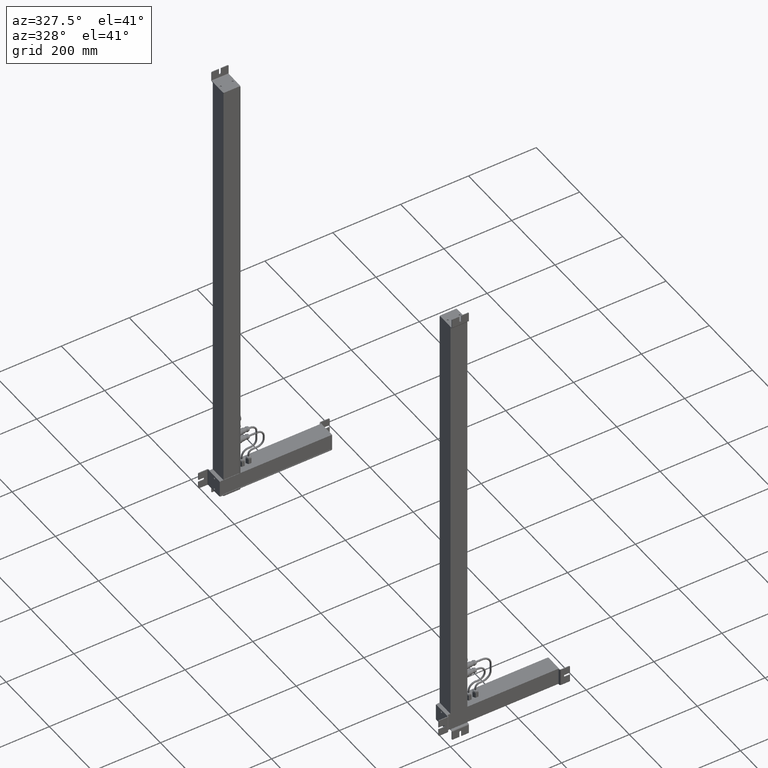
[diagram: clean part render]
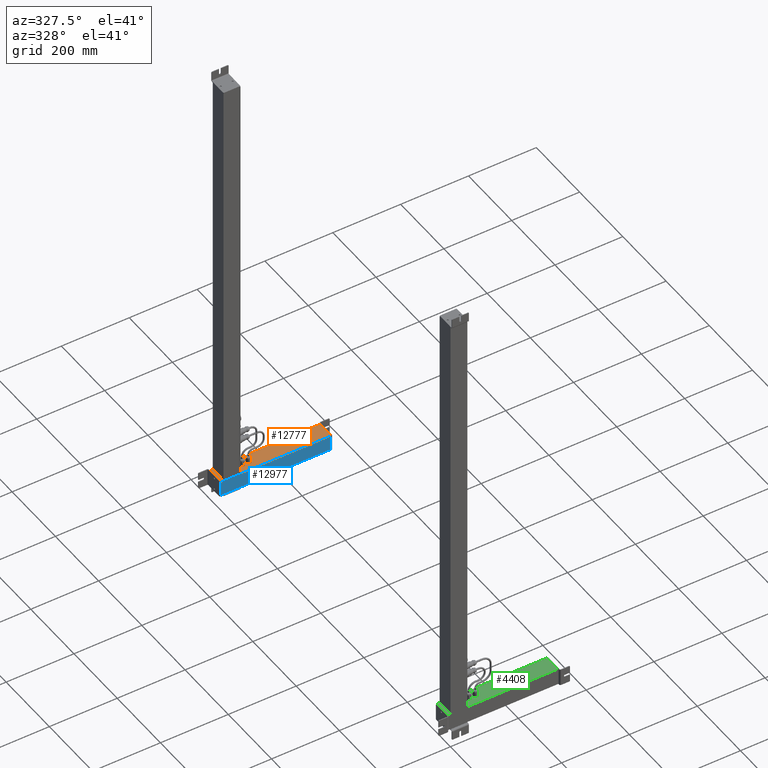
[diagram: same view with three faces highlighted in distinct colors, each labeled with its STEP entity id]
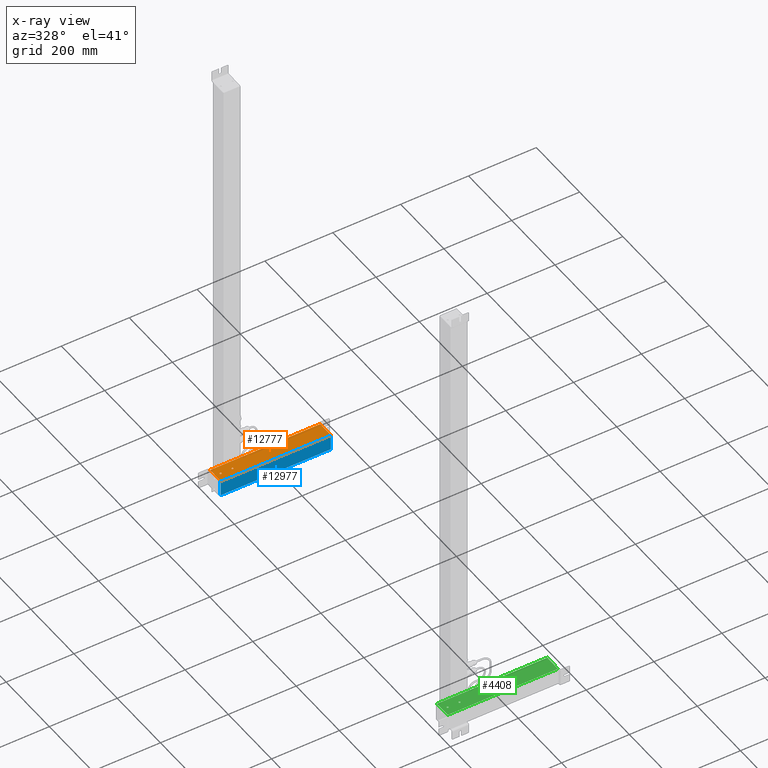
[diagram: x-ray of the same camera — body ghosted, the three highlighted faces saturated]
A machine part, auxiliary view with three faces highlighted in distinct colors.
The next image is the same camera in x-ray (body ghosted, the three faces saturated) — at least one of them is partly hidden behind the body in this view.
Their STEP definitions:

[orange] entity #12777 — the highlighted planar face has unit normal (0, 0, 1).
#12540=CARTESIAN_POINT('Line Origine',(0.,25.,0.)) ;
#12544=CARTESIAN_POINT('Vertex',(9.32587340685E-015,50.,0.)) ;
#12546=CARTESIAN_POINT('Vertex',(0.,0.,0.)) ;
#12641=CARTESIAN_POINT('Vertex',(0.,27.5,309.44)) ;
#12644=CARTESIAN_POINT('Axis2P3D Location',(0.,25.,309.44)) ;
#12648=CARTESIAN_POINT('Vertex',(0.,22.5,309.44)) ;
#12670=CARTESIAN_POINT('Axis2P3D Location',(0.,25.,309.44)) ;
#12693=CARTESIAN_POINT('Vertex',(0.,27.5,274.56)) ;
#12696=CARTESIAN_POINT('Axis2P3D Location',(0.,25.,274.56)) ;
#12700=CARTESIAN_POINT('Vertex',(0.,22.5,274.56)) ;
#12722=CARTESIAN_POINT('Axis2P3D Location',(0.,25.,274.56)) ;
#12739=CARTESIAN_POINT('Axis2P3D Location',(0.,50.,0.)) ;
#12744=CARTESIAN_POINT('Line Origine',(0.,50.,162.5)) ;
#12748=CARTESIAN_POINT('Vertex',(9.32587340685E-015,50.,325.)) ;
#12751=CARTESIAN_POINT('Line Origine',(0.,0.,162.5)) ;
#12755=CARTESIAN_POINT('Vertex',(0.,0.,325.)) ;
#12758=CARTESIAN_POINT('Line Origine',(0.,25.,325.)) ;
#12541=DIRECTION('Vector Direction',(0.,-1.,0.)) ;
#12645=DIRECTION('Axis2P3D Direction',(1.,0.,0.)) ;
#12671=DIRECTION('Axis2P3D Direction',(1.,0.,0.)) ;
#12697=DIRECTION('Axis2P3D Direction',(1.,0.,0.)) ;
#12723=DIRECTION('Axis2P3D Direction',(1.,0.,0.)) ;
#12740=DIRECTION('Axis2P3D Direction',(-1.,0.,0.)) ;
#12741=DIRECTION('Axis2P3D XDirection',(0.,-1.,0.)) ;
#12745=DIRECTION('Vector Direction',(0.,0.,1.)) ;
#12752=DIRECTION('Vector Direction',(0.,0.,1.)) ;
#12759=DIRECTION('Vector Direction',(0.,-1.,0.)) ;
#12646=AXIS2_PLACEMENT_3D('Circle Axis2P3D',#12644,#12645,$) ;
#12672=AXIS2_PLACEMENT_3D('Circle Axis2P3D',#12670,#12671,$) ;
#12698=AXIS2_PLACEMENT_3D('Circle Axis2P3D',#12696,#12697,$) ;
#12724=AXIS2_PLACEMENT_3D('Circle Axis2P3D',#12722,#12723,$) ;
#12742=AXIS2_PLACEMENT_3D('Plane Axis2P3D',#12739,#12740,#12741) ;
#12764=ORIENTED_EDGE('',*,*,#12750,.F.) ;
#12765=ORIENTED_EDGE('',*,*,#12548,.T.) ;
#12766=ORIENTED_EDGE('',*,*,#12757,.T.) ;
#12767=ORIENTED_EDGE('',*,*,#12762,.F.) ;
#12770=ORIENTED_EDGE('',*,*,#12726,.F.) ;
#12771=ORIENTED_EDGE('',*,*,#12702,.F.) ;
#12774=ORIENTED_EDGE('',*,*,#12674,.F.) ;
#12775=ORIENTED_EDGE('',*,*,#12650,.F.) ;
#12772=FACE_BOUND('',#12769,.T.) ;
#12776=FACE_BOUND('',#12773,.T.) ;
#12542=VECTOR('Line Direction',#12541,1.) ;
#12746=VECTOR('Line Direction',#12745,1.) ;
#12753=VECTOR('Line Direction',#12752,1.) ;
#12760=VECTOR('Line Direction',#12759,1.) ;
#12777=ADVANCED_FACE('PartBody',(#12768,#12772,#12776),#12743,.T.) ;
#12647=CIRCLE('generated circle',#12646,2.5) ;
#12673=CIRCLE('generated circle',#12672,2.5) ;
#12699=CIRCLE('generated circle',#12698,2.5) ;
#12725=CIRCLE('generated circle',#12724,2.5) ;
#12548=EDGE_CURVE('',#12545,#12547,#12543,.T.) ;
#12650=EDGE_CURVE('',#12642,#12649,#12647,.F.) ;
#12674=EDGE_CURVE('',#12649,#12642,#12673,.F.) ;
#12702=EDGE_CURVE('',#12694,#12701,#12699,.F.) ;
#12726=EDGE_CURVE('',#12701,#12694,#12725,.F.) ;
#12750=EDGE_CURVE('',#12545,#12749,#12747,.T.) ;
#12757=EDGE_CURVE('',#12547,#12756,#12754,.T.) ;
#12762=EDGE_CURVE('',#12749,#12756,#12761,.T.) ;
#12763=EDGE_LOOP('',(#12764,#12765,#12766,#12767)) ;
#12769=EDGE_LOOP('',(#12770,#12771)) ;
#12773=EDGE_LOOP('',(#12774,#12775)) ;
#12768=FACE_OUTER_BOUND('',#12763,.T.) ;
#12543=LINE('Line',#12540,#12542) ;
#12747=LINE('Line',#12744,#12746) ;
#12754=LINE('Line',#12751,#12753) ;
#12761=LINE('Line',#12758,#12760) ;
#12743=PLANE('Plane',#12742) ;
#12545=VERTEX_POINT('',#12544) ;
#12547=VERTEX_POINT('',#12546) ;
#12642=VERTEX_POINT('',#12641) ;
#12649=VERTEX_POINT('',#12648) ;
#12694=VERTEX_POINT('',#12693) ;
#12701=VERTEX_POINT('',#12700) ;
#12749=VERTEX_POINT('',#12748) ;
#12756=VERTEX_POINT('',#12755) ;

[blue] entity #12977 — the highlighted planar face has unit normal (0, -1, 0).
#12894=CARTESIAN_POINT('Vertex',(2.5,49.,0.)) ;
#12897=CARTESIAN_POINT('Line Origine',(25.,49.,0.)) ;
#12901=CARTESIAN_POINT('Vertex',(47.5,49.,0.)) ;
#12934=CARTESIAN_POINT('Vertex',(2.5,49.,325.)) ;
#12937=CARTESIAN_POINT('Line Origine',(2.5,49.,162.5)) ;
#12954=CARTESIAN_POINT('Axis2P3D Location',(47.5,49.,0.)) ;
#12959=CARTESIAN_POINT('Line Origine',(47.5,49.,162.5)) ;
#12963=CARTESIAN_POINT('Vertex',(47.5,49.,325.)) ;
#12966=CARTESIAN_POINT('Line Origine',(25.,49.,325.)) ;
#12898=DIRECTION('Vector Direction',(-1.,0.,0.)) ;
#12938=DIRECTION('Vector Direction',(0.,0.,1.)) ;
#12955=DIRECTION('Axis2P3D Direction',(0.,1.,-0.)) ;
#12956=DIRECTION('Axis2P3D XDirection',(-1.,0.,0.)) ;
#12960=DIRECTION('Vector Direction',(0.,0.,1.)) ;
#12967=DIRECTION('Vector Direction',(-1.,0.,0.)) ;
#12957=AXIS2_PLACEMENT_3D('Plane Axis2P3D',#12954,#12955,#12956) ;
#12972=ORIENTED_EDGE('',*,*,#12965,.F.) ;
#12973=ORIENTED_EDGE('',*,*,#12903,.F.) ;
#12974=ORIENTED_EDGE('',*,*,#12941,.T.) ;
#12975=ORIENTED_EDGE('',*,*,#12970,.F.) ;
#12899=VECTOR('Line Direction',#12898,1.) ;
#12939=VECTOR('Line Direction',#12938,1.) ;
#12961=VECTOR('Line Direction',#12960,1.) ;
#12968=VECTOR('Line Direction',#12967,1.) ;
#12977=ADVANCED_FACE('Body.2',(#12976),#12958,.T.) ;
#12903=EDGE_CURVE('',#12895,#12902,#12900,.F.) ;
#12941=EDGE_CURVE('',#12895,#12935,#12940,.T.) ;
#12965=EDGE_CURVE('',#12902,#12964,#12962,.T.) ;
#12970=EDGE_CURVE('',#12964,#12935,#12969,.T.) ;
#12971=EDGE_LOOP('',(#12972,#12973,#12974,#12975)) ;
#12976=FACE_OUTER_BOUND('',#12971,.T.) ;
#12900=LINE('Line',#12897,#12899) ;
#12940=LINE('Line',#12937,#12939) ;
#12962=LINE('Line',#12959,#12961) ;
#12969=LINE('Line',#12966,#12968) ;
#12958=PLANE('Plane',#12957) ;
#12895=VERTEX_POINT('',#12894) ;
#12902=VERTEX_POINT('',#12901) ;
#12935=VERTEX_POINT('',#12934) ;
#12964=VERTEX_POINT('',#12963) ;

[green] entity #4408 — the highlighted planar face has unit normal (-0, 0, 1).
#4171=CARTESIAN_POINT('Line Origine',(0.,25.,0.)) ;
#4175=CARTESIAN_POINT('Vertex',(9.32587340685E-015,50.,0.)) ;
#4177=CARTESIAN_POINT('Vertex',(0.,0.,0.)) ;
#4272=CARTESIAN_POINT('Vertex',(0.,27.5,50.44)) ;
#4275=CARTESIAN_POINT('Axis2P3D Location',(0.,25.,50.44)) ;
#4279=CARTESIAN_POINT('Vertex',(0.,22.5,50.44)) ;
#4301=CARTESIAN_POINT('Axis2P3D Location',(0.,25.,50.44)) ;
#4324=CARTESIAN_POINT('Vertex',(0.,27.5,15.56)) ;
#4327=CARTESIAN_POINT('Axis2P3D Location',(0.,25.,15.56)) ;
#4331=CARTESIAN_POINT('Vertex',(0.,22.5,15.56)) ;
#4353=CARTESIAN_POINT('Axis2P3D Location',(0.,25.,15.56)) ;
#4370=CARTESIAN_POINT('Axis2P3D Location',(0.,50.,0.)) ;
#4375=CARTESIAN_POINT('Line Origine',(0.,50.,162.5)) ;
#4379=CARTESIAN_POINT('Vertex',(9.32587340685E-015,50.,325.)) ;
#4382=CARTESIAN_POINT('Line Origine',(0.,0.,162.5)) ;
#4386=CARTESIAN_POINT('Vertex',(0.,0.,325.)) ;
#4389=CARTESIAN_POINT('Line Origine',(0.,25.,325.)) ;
#4172=DIRECTION('Vector Direction',(0.,-1.,0.)) ;
#4276=DIRECTION('Axis2P3D Direction',(1.,0.,0.)) ;
#4302=DIRECTION('Axis2P3D Direction',(1.,0.,0.)) ;
#4328=DIRECTION('Axis2P3D Direction',(1.,0.,0.)) ;
#4354=DIRECTION('Axis2P3D Direction',(1.,0.,0.)) ;
#4371=DIRECTION('Axis2P3D Direction',(-1.,0.,0.)) ;
#4372=DIRECTION('Axis2P3D XDirection',(0.,-1.,0.)) ;
#4376=DIRECTION('Vector Direction',(0.,0.,1.)) ;
#4383=DIRECTION('Vector Direction',(0.,0.,1.)) ;
#4390=DIRECTION('Vector Direction',(0.,-1.,0.)) ;
#4277=AXIS2_PLACEMENT_3D('Circle Axis2P3D',#4275,#4276,$) ;
#4303=AXIS2_PLACEMENT_3D('Circle Axis2P3D',#4301,#4302,$) ;
#4329=AXIS2_PLACEMENT_3D('Circle Axis2P3D',#4327,#4328,$) ;
#4355=AXIS2_PLACEMENT_3D('Circle Axis2P3D',#4353,#4354,$) ;
#4373=AXIS2_PLACEMENT_3D('Plane Axis2P3D',#4370,#4371,#4372) ;
#4395=ORIENTED_EDGE('',*,*,#4381,.F.) ;
#4396=ORIENTED_EDGE('',*,*,#4179,.T.) ;
#4397=ORIENTED_EDGE('',*,*,#4388,.T.) ;
#4398=ORIENTED_EDGE('',*,*,#4393,.F.) ;
#4401=ORIENTED_EDGE('',*,*,#4357,.F.) ;
#4402=ORIENTED_EDGE('',*,*,#4333,.F.) ;
#4405=ORIENTED_EDGE('',*,*,#4305,.F.) ;
#4406=ORIENTED_EDGE('',*,*,#4281,.F.) ;
#4403=FACE_BOUND('',#4400,.T.) ;
#4407=FACE_BOUND('',#4404,.T.) ;
#4173=VECTOR('Line Direction',#4172,1.) ;
#4377=VECTOR('Line Direction',#4376,1.) ;
#4384=VECTOR('Line Direction',#4383,1.) ;
#4391=VECTOR('Line Direction',#4390,1.) ;
#4408=ADVANCED_FACE('PartBody',(#4399,#4403,#4407),#4374,.T.) ;
#4278=CIRCLE('generated circle',#4277,2.5) ;
#4304=CIRCLE('generated circle',#4303,2.5) ;
#4330=CIRCLE('generated circle',#4329,2.5) ;
#4356=CIRCLE('generated circle',#4355,2.5) ;
#4179=EDGE_CURVE('',#4176,#4178,#4174,.T.) ;
#4281=EDGE_CURVE('',#4273,#4280,#4278,.F.) ;
#4305=EDGE_CURVE('',#4280,#4273,#4304,.F.) ;
#4333=EDGE_CURVE('',#4325,#4332,#4330,.F.) ;
#4357=EDGE_CURVE('',#4332,#4325,#4356,.F.) ;
#4381=EDGE_CURVE('',#4176,#4380,#4378,.T.) ;
#4388=EDGE_CURVE('',#4178,#4387,#4385,.T.) ;
#4393=EDGE_CURVE('',#4380,#4387,#4392,.T.) ;
#4394=EDGE_LOOP('',(#4395,#4396,#4397,#4398)) ;
#4400=EDGE_LOOP('',(#4401,#4402)) ;
#4404=EDGE_LOOP('',(#4405,#4406)) ;
#4399=FACE_OUTER_BOUND('',#4394,.T.) ;
#4174=LINE('Line',#4171,#4173) ;
#4378=LINE('Line',#4375,#4377) ;
#4385=LINE('Line',#4382,#4384) ;
#4392=LINE('Line',#4389,#4391) ;
#4374=PLANE('Plane',#4373) ;
#4176=VERTEX_POINT('',#4175) ;
#4178=VERTEX_POINT('',#4177) ;
#4273=VERTEX_POINT('',#4272) ;
#4280=VERTEX_POINT('',#4279) ;
#4325=VERTEX_POINT('',#4324) ;
#4332=VERTEX_POINT('',#4331) ;
#4380=VERTEX_POINT('',#4379) ;
#4387=VERTEX_POINT('',#4386) ;